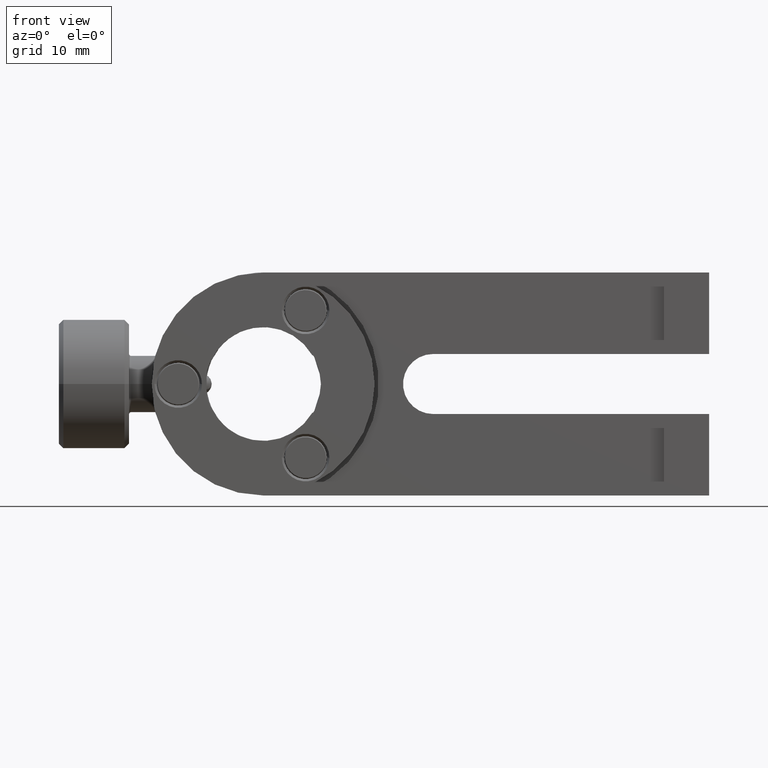
[diagram: clean part render]
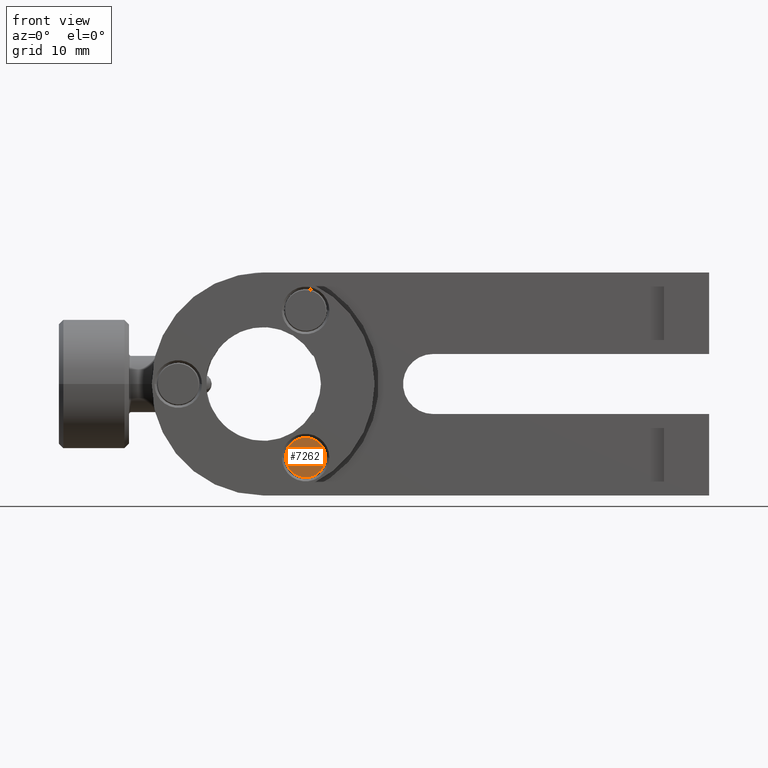
[diagram: same view with one face highlighted and labeled with its STEP entity id]
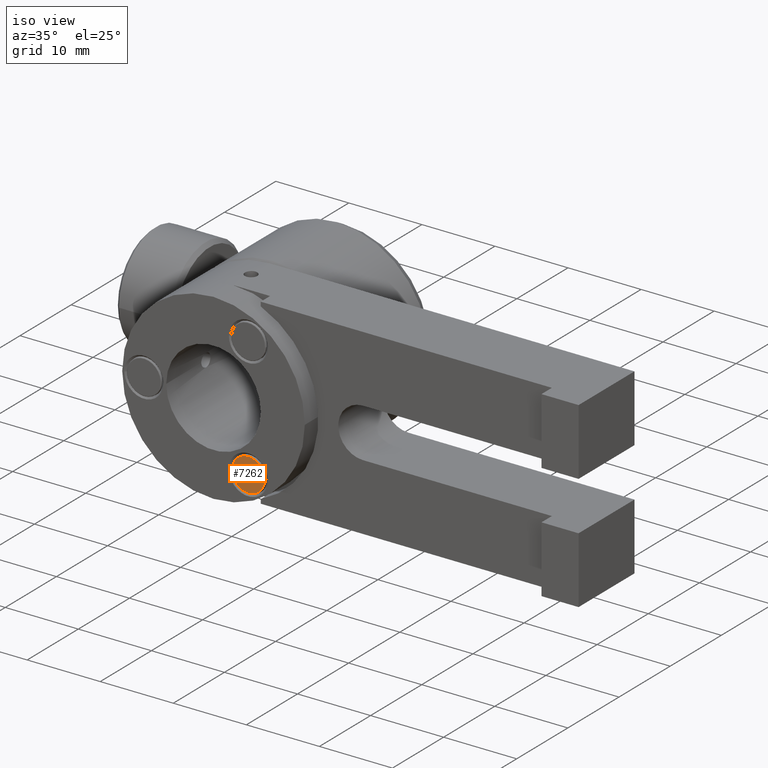
[diagram: same view with one face highlighted and labeled with its STEP entity id]
A machine part, front view. The second image highlights one B-rep face of the part: STEP entity #7262.
A second angle (iso view) of the same face is appended — the face is thin or edge-on in the first view.
In plain terms, the highlighted planar face has unit normal (0, -1, 0).
Its self-contained STEP definition (entity closure, byte-faithful):
#103 = CARTESIAN_POINT ( 'NONE',  ( 6.631706789922083600, -5.173065212235104400, -8.290830272919476900 ) ) ;
#538 = DIRECTION ( 'NONE',  ( 0.0000000000000000000, -1.000000000000000000, 0.0000000000000000000 ) ) ;
#801 = AXIS2_PLACEMENT_3D ( 'NONE', #6966, #3014, #3579 ) ;
#1063 = FACE_OUTER_BOUND ( 'NONE', #5222, .T. ) ;
#2106 = DIRECTION ( 'NONE',  ( 0.0000000000000000000, -1.000000000000000000, 0.0000000000000000000 ) ) ;
#2459 = CIRCLE ( 'NONE', #801, 2.254250000000000800 ) ;
#2506 = CARTESIAN_POINT ( 'NONE',  ( 11.13942649786134700, -5.173065212235104400, -8.206953669173385500 ) ) ;
#2752 = DIRECTION ( 'NONE',  ( 0.9998269286767798000, 0.0000000000000000000, 0.01860410419121467900 ) ) ;
#2784 = EDGE_CURVE ( 'NONE', #6357, #6206, #5169, .T. ) ;
#2800 = CARTESIAN_POINT ( 'NONE',  ( 8.885566643891715800, -5.173065212235104400, -8.248891971046431200 ) ) ;
#3014 = DIRECTION ( 'NONE',  ( 0.0000000000000000000, -1.000000000000000000, 0.0000000000000000000 ) ) ;
#3286 = AXIS2_PLACEMENT_3D ( 'NONE', #4401, #2106, #6066 ) ;
#3579 = DIRECTION ( 'NONE',  ( 0.9998269286767798000, 0.0000000000000000000, 0.01860410419121467900 ) ) ;
#3824 = PLANE ( 'NONE',  #3286 ) ;
#3937 = ORIENTED_EDGE ( 'NONE', *, *, #6303, .T. ) ;
#4401 = CARTESIAN_POINT ( 'NONE',  ( 8.843628342018670100, -5.173065212235105300, -5.995032117076800800 ) ) ;
#5169 = CIRCLE ( 'NONE', #6084, 2.254250000000000800 ) ;
#5222 = EDGE_LOOP ( 'NONE', ( #6741, #3937 ) ) ;
#6066 = DIRECTION ( 'NONE',  ( 0.9998269286767796900, 0.0000000000000000000, 0.01860410419121435300 ) ) ;
#6084 = AXIS2_PLACEMENT_3D ( 'NONE', #2800, #538, #2752 ) ;
#6206 = VERTEX_POINT ( 'NONE', #103 ) ;
#6303 = EDGE_CURVE ( 'NONE', #6206, #6357, #2459, .T. ) ;
#6357 = VERTEX_POINT ( 'NONE', #2506 ) ;
#6741 = ORIENTED_EDGE ( 'NONE', *, *, #2784, .T. ) ;
#6966 = CARTESIAN_POINT ( 'NONE',  ( 8.885566643891715800, -5.173065212235104400, -8.248891971046431200 ) ) ;
#7262 = ADVANCED_FACE ( 'NONE', ( #1063 ), #3824, .T. ) ;